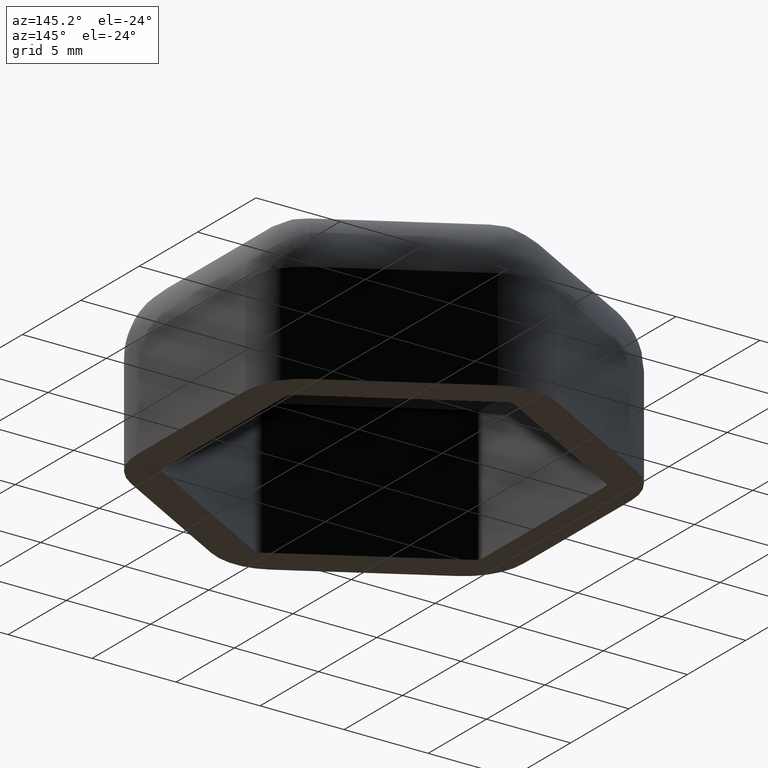
[diagram: clean part render]
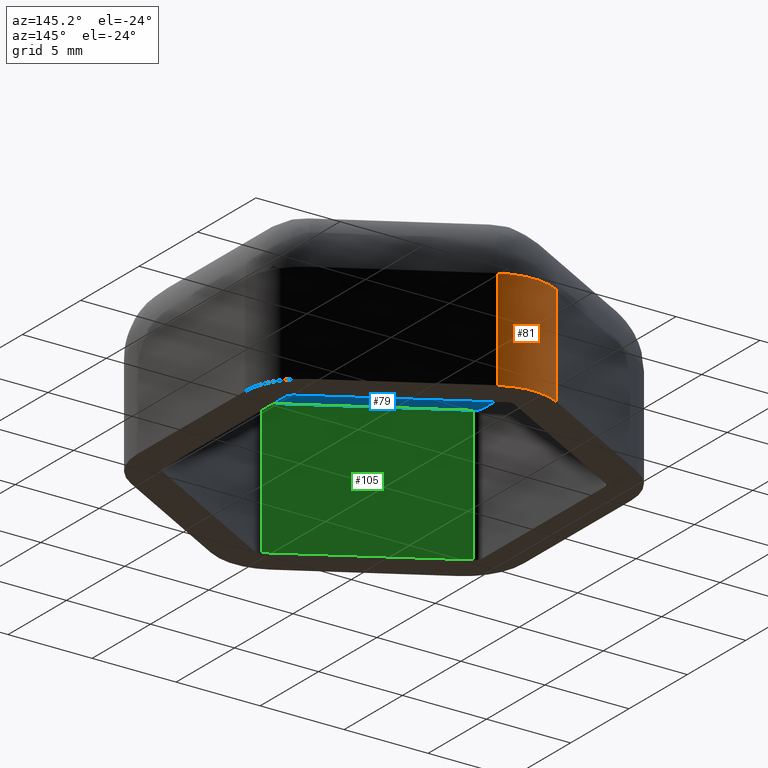
[diagram: same view with three faces highlighted in distinct colors, each labeled with its STEP entity id]
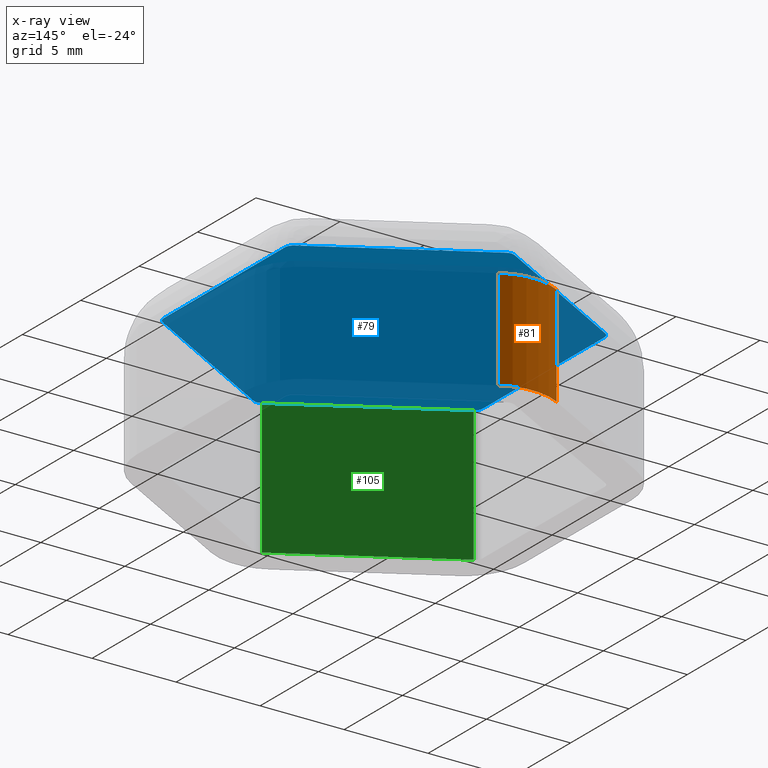
[diagram: x-ray of the same camera — body ghosted, the three highlighted faces saturated]
A machine part, auxiliary view with three faces highlighted in distinct colors.
The next image is the same camera in x-ray (body ghosted, the three faces saturated) — at least one of them is partly hidden behind the body in this view.
Their STEP definitions:

[orange] entity #81 — the highlighted cylindrical surface (partial cylindrical patch) has radius 3.5 mm, axis along (-0, 0, 1).
#81 = ADVANCED_FACE( '', ( #128 ), #129, .T. );
#128 = FACE_OUTER_BOUND( '', #207, .T. );
#129 = CYLINDRICAL_SURFACE( '', #208, 3.50000000000000 );
#207 = EDGE_LOOP( '', ( #1027, #1028, #1029, #1030 ) );
#208 = AXIS2_PLACEMENT_3D( '', #1031, #1032, #1033 );
#1027 = ORIENTED_EDGE( '', *, *, #1279, .F. );
#1028 = ORIENTED_EDGE( '', *, *, #1280, .T. );
#1029 = ORIENTED_EDGE( '', *, *, #1281, .T. );
#1030 = ORIENTED_EDGE( '', *, *, #1238, .F. );
#1031 = CARTESIAN_POINT( '', ( -4.69405330577599E-015, 9.23760430703402, 10.0000000000000 ) );
#1032 = DIRECTION( '', ( -1.22460635382238E-016, 8.04960107368382E-033, 1.00000000000000 ) );
#1033 = DIRECTION( '', ( -0.500000000000000, 0.866025403784439, -6.12303176911189E-017 ) );
#1238 = EDGE_CURVE( '', #1329, #1331, #1332, .T. );
#1279 = EDGE_CURVE( '', #1406, #1329, #1408, .T. );
#1280 = EDGE_CURVE( '', #1406, #1409, #1410, .T. );
#1281 = EDGE_CURVE( '', #1409, #1331, #1411, .T. );
#1329 = VERTEX_POINT( '', #1473 );
#1331 = VERTEX_POINT( '', #1476 );
#1332 = CIRCLE( '', #1477, 3.50000000000000 );
#1406 = VERTEX_POINT( '', #1573 );
#1408 = LINE( '', #1576, #1577 );
#1409 = VERTEX_POINT( '', #1578 );
#1410 = CIRCLE( '', #1579, 3.50000000000000 );
#1411 = LINE( '', #1580, #1581 );
#1473 = CARTESIAN_POINT( '', ( -1.75000000000000, 12.2686932202795, -2.14306111918916E-016 ) );
#1476 = CARTESIAN_POINT( '', ( 1.74999999999999, 12.2686932202796, 2.14306111918915E-016 ) );
#1477 = AXIS2_PLACEMENT_3D( '', #1672, #1673, #1674 );
#1573 = CARTESIAN_POINT( '', ( -1.75000000000000, 12.2686932202795, 6.00000000000000 ) );
#1576 = CARTESIAN_POINT( '', ( -1.75000000000000, 12.2686932202795, 10.0000000000000 ) );
#1577 = VECTOR( '', #1749, 1000.00000000000 );
#1578 = CARTESIAN_POINT( '', ( 1.74999999999999, 12.2686932202796, 6.00000000000000 ) );
#1579 = AXIS2_PLACEMENT_3D( '', #1750, #1751, #1752 );
#1580 = CARTESIAN_POINT( '', ( 1.74999999999999, 12.2686932202796, 10.0000000000000 ) );
#1581 = VECTOR( '', #1753, 1000.00000000000 );
#1672 = CARTESIAN_POINT( '', ( -3.46944695195361E-015, 9.23760430703402, -4.24870678161208E-031 ) );
#1673 = DIRECTION( '', ( 1.22460635382238E-016, -8.04960107368382E-033, -1.00000000000000 ) );
#1674 = DIRECTION( '', ( -0.500000000000000, 0.866025403784439, -6.12303176911189E-017 ) );
#1749 = DIRECTION( '', ( 1.22460635382238E-016, 0.000000000000000, -1.00000000000000 ) );
#1750 = CARTESIAN_POINT( '', ( -4.42105119874414E-015, 9.23760430703402, 6.00000000000000 ) );
#1751 = DIRECTION( '', ( 1.22460635382238E-016, 0.000000000000000, -1.00000000000000 ) );
#1752 = DIRECTION( '', ( -1.00000000000000, 0.000000000000000, -1.22460635382238E-016 ) );
#1753 = DIRECTION( '', ( 1.22460635382238E-016, 0.000000000000000, -1.00000000000000 ) );

[blue] entity #79 — the highlighted planar face has unit normal (0, 0, -1).
#79 = ADVANCED_FACE( '', ( #124 ), #125, .T. );
#124 = FACE_OUTER_BOUND( '', #203, .T. );
#125 = PLANE( '', #204 );
#203 = EDGE_LOOP( '', ( #1005, #1006, #1007, #1008, #1009, #1010, #1011, #1012, #1013, #1014, #1015, #1016 ) );
#204 = AXIS2_PLACEMENT_3D( '', #1017, #1018, #1019 );
#1005 = ORIENTED_EDGE( '', *, *, #1264, .T. );
#1006 = ORIENTED_EDGE( '', *, *, #1267, .T. );
#1007 = ORIENTED_EDGE( '', *, *, #1268, .T. );
#1008 = ORIENTED_EDGE( '', *, *, #1269, .T. );
#1009 = ORIENTED_EDGE( '', *, *, #1270, .T. );
#1010 = ORIENTED_EDGE( '', *, *, #1271, .T. );
#1011 = ORIENTED_EDGE( '', *, *, #1272, .T. );
#1012 = ORIENTED_EDGE( '', *, *, #1273, .T. );
#1013 = ORIENTED_EDGE( '', *, *, #1274, .T. );
#1014 = ORIENTED_EDGE( '', *, *, #1275, .T. );
#1015 = ORIENTED_EDGE( '', *, *, #1276, .T. );
#1016 = ORIENTED_EDGE( '', *, *, #1277, .T. );
#1017 = CARTESIAN_POINT( '', ( -9.00000000000000, 5.19615242270663, 8.00000000000000 ) );
#1018 = DIRECTION( '', ( 1.22460635382238E-016, 6.46234853557053E-033, -1.00000000000000 ) );
#1019 = DIRECTION( '', ( -0.500000000000000, 0.866025403784439, -6.12303176911189E-017 ) );
#1264 = EDGE_CURVE( '', #1381, #1379, #1382, .T. );
#1267 = EDGE_CURVE( '', #1379, #1384, #1386, .T. );
#1268 = EDGE_CURVE( '', #1384, #1387, #1388, .T. );
#1269 = EDGE_CURVE( '', #1387, #1389, #1390, .T. );
#1270 = EDGE_CURVE( '', #1389, #1391, #1392, .T. );
#1271 = EDGE_CURVE( '', #1391, #1393, #1394, .T. );
#1272 = EDGE_CURVE( '', #1393, #1395, #1396, .T. );
#1273 = EDGE_CURVE( '', #1395, #1397, #1398, .T. );
#1274 = EDGE_CURVE( '', #1397, #1399, #1400, .T. );
#1275 = EDGE_CURVE( '', #1399, #1401, #1402, .T. );
#1276 = EDGE_CURVE( '', #1401, #1403, #1404, .T. );
#1277 = EDGE_CURVE( '', #1403, #1381, #1405, .T. );
#1379 = VERTEX_POINT( '', #1537 );
#1381 = VERTEX_POINT( '', #1540 );
#1382 = CIRCLE( '', #1541, 0.500000000000002 );
#1384 = VERTEX_POINT( '', #1544 );
#1386 = LINE( '', #1547, #1548 );
#1387 = VERTEX_POINT( '', #1549 );
#1388 = CIRCLE( '', #1550, 0.499999999999999 );
#1389 = VERTEX_POINT( '', #1551 );
#1390 = LINE( '', #1552, #1553 );
#1391 = VERTEX_POINT( '', #1554 );
#1392 = CIRCLE( '', #1555, 0.499999999999999 );
#1393 = VERTEX_POINT( '', #1556 );
#1394 = LINE( '', #1557, #1558 );
#1395 = VERTEX_POINT( '', #1559 );
#1396 = CIRCLE( '', #1560, 0.499999999999999 );
#1397 = VERTEX_POINT( '', #1561 );
#1398 = LINE( '', #1562, #1563 );
#1399 = VERTEX_POINT( '', #1564 );
#1400 = CIRCLE( '', #1565, 0.500000000000000 );
#1401 = VERTEX_POINT( '', #1566 );
#1402 = LINE( '', #1567, #1568 );
#1403 = VERTEX_POINT( '', #1569 );
#1404 = CIRCLE( '', #1570, 0.500000000000002 );
#1405 = LINE( '', #1571, #1572 );
#1537 = CARTESIAN_POINT( '', ( -9.25000000000001, 5.62916512459885, 8.00000000000000 ) );
#1540 = CARTESIAN_POINT( '', ( -9.50000000000001, 5.19615242270664, 8.00000000000000 ) );
#1541 = AXIS2_PLACEMENT_3D( '', #1722, #1723, #1724 );
#1544 = CARTESIAN_POINT( '', ( -0.250000000000001, 10.8253175473055, 8.00000000000000 ) );
#1547 = CARTESIAN_POINT( '', ( -9.25000000000001, 5.62916512459885, 8.00000000000000 ) );
#1548 = VECTOR( '', #1727, 1000.00000000000 );
#1549 = CARTESIAN_POINT( '', ( 0.249999999999999, 10.8253175473055, 8.00000000000000 ) );
#1550 = AXIS2_PLACEMENT_3D( '', #1728, #1729, #1730 );
#1551 = CARTESIAN_POINT( '', ( 9.25000000000000, 5.62916512459885, 8.00000000000000 ) );
#1552 = CARTESIAN_POINT( '', ( 0.249999999999998, 10.8253175473055, 8.00000000000000 ) );
#1553 = VECTOR( '', #1731, 1000.00000000000 );
#1554 = CARTESIAN_POINT( '', ( 9.50000000000000, 5.19615242270663, 8.00000000000000 ) );
#1555 = AXIS2_PLACEMENT_3D( '', #1732, #1733, #1734 );
#1556 = CARTESIAN_POINT( '', ( 9.50000000000000, -5.19615242270663, 8.00000000000000 ) );
#1557 = CARTESIAN_POINT( '', ( 9.50000000000000, 5.19615242270663, 8.00000000000000 ) );
#1558 = VECTOR( '', #1735, 1000.00000000000 );
#1559 = CARTESIAN_POINT( '', ( 9.25000000000000, -5.62916512459885, 8.00000000000000 ) );
#1560 = AXIS2_PLACEMENT_3D( '', #1736, #1737, #1738 );
#1561 = CARTESIAN_POINT( '', ( 0.250000000000004, -10.8253175473055, 8.00000000000000 ) );
#1562 = CARTESIAN_POINT( '', ( 9.25000000000000, -5.62916512459885, 8.00000000000000 ) );
#1563 = VECTOR( '', #1739, 1000.00000000000 );
#1564 = CARTESIAN_POINT( '', ( -0.249999999999999, -10.8253175473055, 8.00000000000000 ) );
#1565 = AXIS2_PLACEMENT_3D( '', #1740, #1741, #1742 );
#1566 = CARTESIAN_POINT( '', ( -9.25000000000000, -5.62916512459886, 8.00000000000000 ) );
#1567 = CARTESIAN_POINT( '', ( -0.249999999999998, -10.8253175473055, 8.00000000000000 ) );
#1568 = VECTOR( '', #1743, 1000.00000000000 );
#1569 = CARTESIAN_POINT( '', ( -9.50000000000000, -5.19615242270663, 8.00000000000000 ) );
#1570 = AXIS2_PLACEMENT_3D( '', #1744, #1745, #1746 );
#1571 = CARTESIAN_POINT( '', ( -9.50000000000000, -5.19615242270664, 8.00000000000000 ) );
#1572 = VECTOR( '', #1747, 1000.00000000000 );
#1722 = CARTESIAN_POINT( '', ( -9.00000000000000, 5.19615242270663, 8.00000000000000 ) );
#1723 = DIRECTION( '', ( 1.22460635382238E-016, 0.000000000000000, -1.00000000000000 ) );
#1724 = DIRECTION( '', ( -1.00000000000000, -1.77635683940025E-015, -1.22460635382238E-016 ) );
#1727 = DIRECTION( '', ( 0.866025403784439, 0.500000000000000, 1.06054021204601E-016 ) );
#1728 = CARTESIAN_POINT( '', ( -9.79685083057902E-016, 10.3923048454133, 8.00000000000000 ) );
#1729 = DIRECTION( '', ( 1.22460635382238E-016, 6.16297582203919E-033, -1.00000000000000 ) );
#1730 = DIRECTION( '', ( -0.500000000000000, 0.866025403784439, -6.12303176911189E-017 ) );
#1731 = DIRECTION( '', ( 0.866025403784439, -0.500000000000000, 1.06054021204601E-016 ) );
#1732 = CARTESIAN_POINT( '', ( 9.00000000000000, 5.19615242270663, 8.00000000000000 ) );
#1733 = DIRECTION( '', ( 1.22460635382238E-016, 0.000000000000000, -1.00000000000000 ) );
#1734 = DIRECTION( '', ( 0.499999999999998, 0.866025403784440, 6.12303176911187E-017 ) );
#1735 = DIRECTION( '', ( -1.11022302462516E-016, -1.00000000000000, -1.35958617011586E-032 ) );
#1736 = CARTESIAN_POINT( '', ( 9.00000000000000, -5.19615242270663, 8.00000000000000 ) );
#1737 = DIRECTION( '', ( 1.22460635382238E-016, 4.37905770101507E-047, -1.00000000000000 ) );
#1738 = DIRECTION( '', ( 1.00000000000000, -1.72084568816899E-015, 1.22460635382238E-016 ) );
#1739 = DIRECTION( '', ( -0.866025403784439, -0.500000000000000, -1.06054021204601E-016 ) );
#1740 = CARTESIAN_POINT( '', ( 7.55038392918905E-016, -10.3923048454133, 8.00000000000000 ) );
#1741 = DIRECTION( '', ( 1.22460635382238E-016, 0.000000000000000, -1.00000000000000 ) );
#1742 = DIRECTION( '', ( 0.500000000000000, -0.866025403784439, 6.12303176911189E-017 ) );
#1743 = DIRECTION( '', ( -0.866025403784439, 0.499999999999999, -1.06054021204601E-016 ) );
#1744 = CARTESIAN_POINT( '', ( -9.00000000000000, -5.19615242270664, 8.00000000000000 ) );
#1745 = DIRECTION( '', ( 1.22460635382238E-016, 1.23259516440782E-032, -1.00000000000000 ) );
#1746 = DIRECTION( '', ( -0.500000000000001, -0.866025403784438, -6.12303176911190E-017 ) );
#1747 = DIRECTION( '', ( -3.88578058618805E-016, 1.00000000000000, -4.75855159540553E-032 ) );

[green] entity #105 — the highlighted planar face has unit normal (0.5, 0.866, 0).
#105 = ADVANCED_FACE( '', ( #176 ), #177, .T. );
#176 = FACE_OUTER_BOUND( '', #939, .T. );
#177 = PLANE( '', #940 );
#939 = EDGE_LOOP( '', ( #1173, #1174, #1175, #1176 ) );
#940 = AXIS2_PLACEMENT_3D( '', #1177, #1178, #1179 );
#1173 = ORIENTED_EDGE( '', *, *, #1318, .T. );
#1174 = ORIENTED_EDGE( '', *, *, #1275, .F. );
#1175 = ORIENTED_EDGE( '', *, *, #1319, .F. );
#1176 = ORIENTED_EDGE( '', *, *, #1252, .F. );
#1177 = CARTESIAN_POINT( '', ( -0.249999999999993, -10.8253175473055, -30.0000000000000 ) );
#1178 = DIRECTION( '', ( 0.500000000000000, 0.866025403784439, 6.12303176911188E-017 ) );
#1179 = DIRECTION( '', ( 0.866025403784439, -0.500000000000000, 1.06054021204601E-016 ) );
#1252 = EDGE_CURVE( '', #1357, #1359, #1360, .T. );
#1275 = EDGE_CURVE( '', #1399, #1401, #1402, .T. );
#1318 = EDGE_CURVE( '', #1357, #1401, #1462, .T. );
#1319 = EDGE_CURVE( '', #1359, #1399, #1463, .T. );
#1357 = VERTEX_POINT( '', #1509 );
#1359 = VERTEX_POINT( '', #1511 );
#1360 = LINE( '', #1512, #1513 );
#1399 = VERTEX_POINT( '', #1564 );
#1401 = VERTEX_POINT( '', #1566 );
#1402 = LINE( '', #1567, #1568 );
#1462 = LINE( '', #1652, #1653 );
#1463 = LINE( '', #1654, #1655 );
#1509 = CARTESIAN_POINT( '', ( -9.25000000000000, -5.62916512459886, -1.13276087728570E-015 ) );
#1511 = CARTESIAN_POINT( '', ( -0.249999999999999, -10.8253175473055, -3.06151588455592E-017 ) );
#1512 = CARTESIAN_POINT( '', ( -12.7500000000000, -3.60843918243517, -1.56137310112353E-015 ) );
#1513 = VECTOR( '', #1700, 1000.00000000000 );
#1564 = CARTESIAN_POINT( '', ( -0.249999999999999, -10.8253175473055, 8.00000000000000 ) );
#1566 = CARTESIAN_POINT( '', ( -9.25000000000000, -5.62916512459886, 8.00000000000000 ) );
#1567 = CARTESIAN_POINT( '', ( -0.249999999999998, -10.8253175473055, 8.00000000000000 ) );
#1568 = VECTOR( '', #1743, 1000.00000000000 );
#1652 = CARTESIAN_POINT( '', ( -9.24999999999999, -5.62916512459886, -30.0000000000000 ) );
#1653 = VECTOR( '', #1822, 1000.00000000000 );
#1654 = CARTESIAN_POINT( '', ( -0.249999999999995, -10.8253175473055, -30.0000000000000 ) );
#1655 = VECTOR( '', #1823, 1000.00000000000 );
#1700 = DIRECTION( '', ( 0.866025403784439, -0.500000000000000, 1.06054021204601E-016 ) );
#1743 = DIRECTION( '', ( -0.866025403784439, 0.499999999999999, -1.06054021204601E-016 ) );
#1822 = DIRECTION( '', ( -1.22460635382238E-016, 0.000000000000000, 1.00000000000000 ) );
#1823 = DIRECTION( '', ( -1.22460635382238E-016, 0.000000000000000, 1.00000000000000 ) );